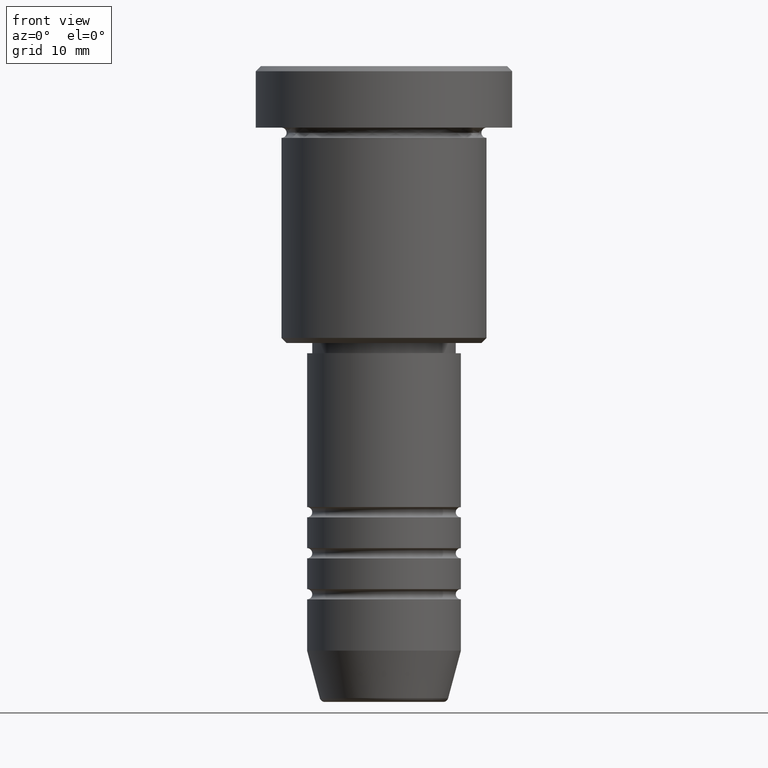
[diagram: clean part render]
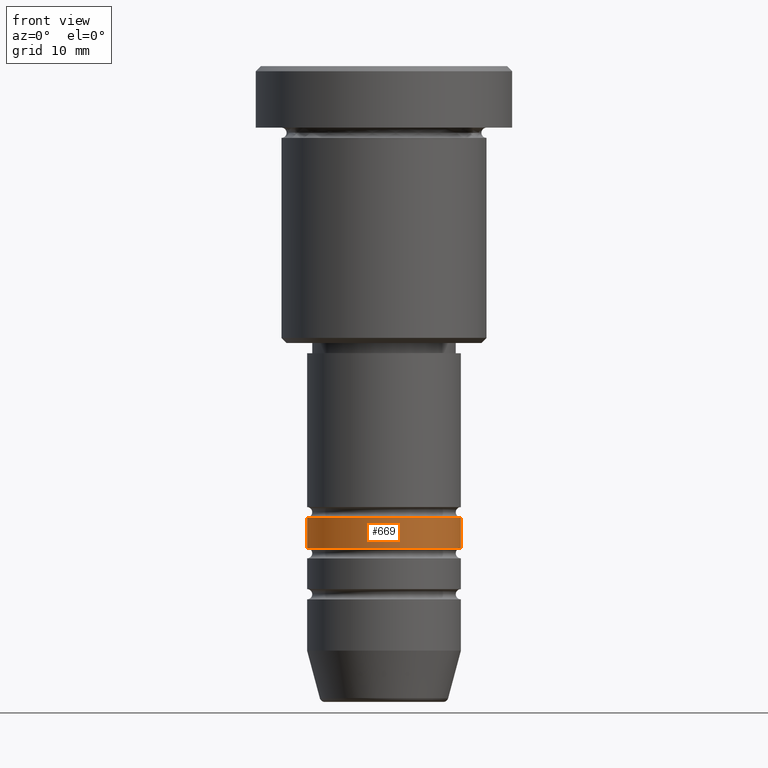
[diagram: same view with one face highlighted and labeled with its STEP entity id]
A machine part, front view. The second image highlights one B-rep face of the part: STEP entity #669.
In plain terms, the highlighted cylindrical surface (partial cylindrical patch) has radius 7.5 mm, axis along (-0, -0, 1).
Its self-contained STEP definition (entity closure, byte-faithful):
#16 = CARTESIAN_POINT ( 'NONE',  ( 0.000000000000000000, 0.000000000000000000, -43.99999999999989342 ) ) ;
#38 = EDGE_CURVE ( 'NONE', #82, #323, #563, .T. ) ;
#59 = DIRECTION ( 'NONE',  ( 1.000000000000000000, 0.000000000000000000, 0.000000000000000000 ) ) ;
#73 = EDGE_CURVE ( 'NONE', #749, #323, #1158, .T. ) ;
#76 = VECTOR ( 'NONE', #479, 1000.000000000000000 ) ;
#82 = VERTEX_POINT ( 'NONE', #1052 ) ;
#142 = EDGE_LOOP ( 'NONE', ( #1076, #823, #730, #524 ) ) ;
#143 = DIRECTION ( 'NONE',  ( -0.000000000000000000, -0.000000000000000000, 1.000000000000000000 ) ) ;
#150 = VERTEX_POINT ( 'NONE', #306 ) ;
#282 = AXIS2_PLACEMENT_3D ( 'NONE', #567, #1024, #757 ) ;
#306 = CARTESIAN_POINT ( 'NONE',  ( -7.500000000000003553, 9.184850993605151889E-16, -46.99999999999990763 ) ) ;
#312 = CARTESIAN_POINT ( 'NONE',  ( -7.500000000000000000, 9.184850993605147944E-16, -43.99999999999989342 ) ) ;
#323 = VERTEX_POINT ( 'NONE', #629 ) ;
#420 = CIRCLE ( 'NONE', #554, 7.500000000000002665 ) ;
#479 = DIRECTION ( 'NONE',  ( -0.000000000000000000, -0.000000000000000000, 1.000000000000000000 ) ) ;
#485 = EDGE_CURVE ( 'NONE', #150, #82, #420, .T. ) ;
#488 = VECTOR ( 'NONE', #143, 1000.000000000000000 ) ;
#524 = ORIENTED_EDGE ( 'NONE', *, *, #73, .F. ) ;
#554 = AXIS2_PLACEMENT_3D ( 'NONE', #787, #887, #680 ) ;
#563 = LINE ( 'NONE', #1097, #76 ) ;
#567 = CARTESIAN_POINT ( 'NONE',  ( 0.000000000000000000, 0.000000000000000000, 0.000000000000000000 ) ) ;
#629 = CARTESIAN_POINT ( 'NONE',  ( 7.500000000000000000, 0.000000000000000000, -43.99999999999989342 ) ) ;
#664 = CYLINDRICAL_SURFACE ( 'NONE', #282, 7.500000000000001776 ) ;
#669 = ADVANCED_FACE ( 'NONE', ( #1116 ), #664, .T. ) ;
#680 = DIRECTION ( 'NONE',  ( 1.000000000000000000, 0.000000000000000000, 0.000000000000000000 ) ) ;
#730 = ORIENTED_EDGE ( 'NONE', *, *, #38, .T. ) ;
#739 = AXIS2_PLACEMENT_3D ( 'NONE', #16, #782, #59 ) ;
#742 = EDGE_CURVE ( 'NONE', #150, #749, #1131, .T. ) ;
#749 = VERTEX_POINT ( 'NONE', #312 ) ;
#757 = DIRECTION ( 'NONE',  ( 1.000000000000000000, 0.000000000000000000, 0.000000000000000000 ) ) ;
#782 = DIRECTION ( 'NONE',  ( -0.000000000000000000, -0.000000000000000000, 1.000000000000000000 ) ) ;
#787 = CARTESIAN_POINT ( 'NONE',  ( 0.000000000000000000, 0.000000000000000000, -46.99999999999990763 ) ) ;
#823 = ORIENTED_EDGE ( 'NONE', *, *, #485, .T. ) ;
#887 = DIRECTION ( 'NONE',  ( -0.000000000000000000, -0.000000000000000000, 1.000000000000000000 ) ) ;
#956 = CARTESIAN_POINT ( 'NONE',  ( -7.500000000000001776, 9.184850993605149917E-16, 0.000000000000000000 ) ) ;
#1024 = DIRECTION ( 'NONE',  ( -0.000000000000000000, -0.000000000000000000, 1.000000000000000000 ) ) ;
#1052 = CARTESIAN_POINT ( 'NONE',  ( 7.500000000000002665, 0.000000000000000000, -46.99999999999990763 ) ) ;
#1076 = ORIENTED_EDGE ( 'NONE', *, *, #742, .F. ) ;
#1097 = CARTESIAN_POINT ( 'NONE',  ( 7.500000000000001776, 0.000000000000000000, 0.000000000000000000 ) ) ;
#1116 = FACE_OUTER_BOUND ( 'NONE', #142, .T. ) ;
#1131 = LINE ( 'NONE', #956, #488 ) ;
#1158 = CIRCLE ( 'NONE', #739, 7.500000000000000000 ) ;